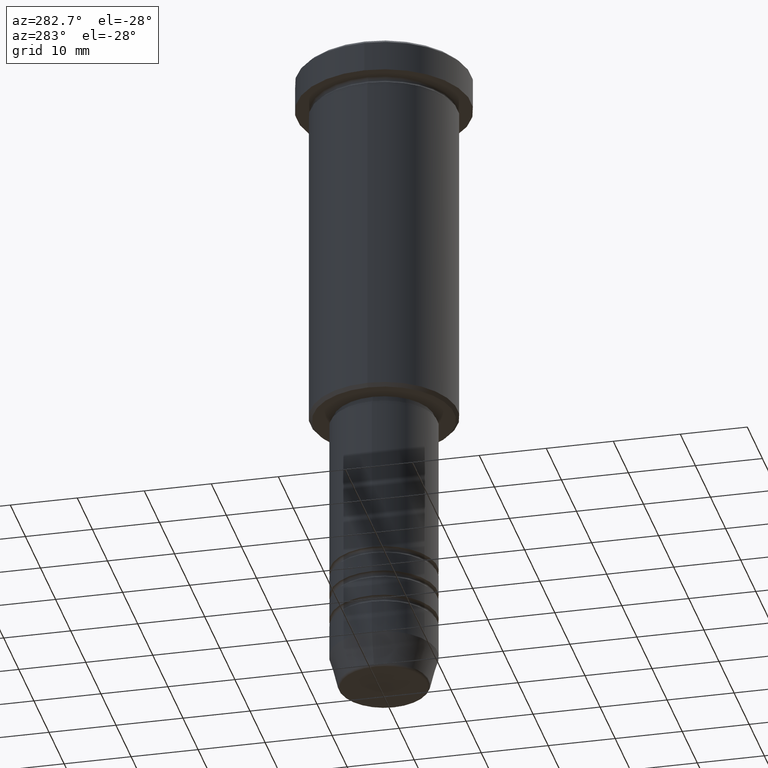
[diagram: clean part render]
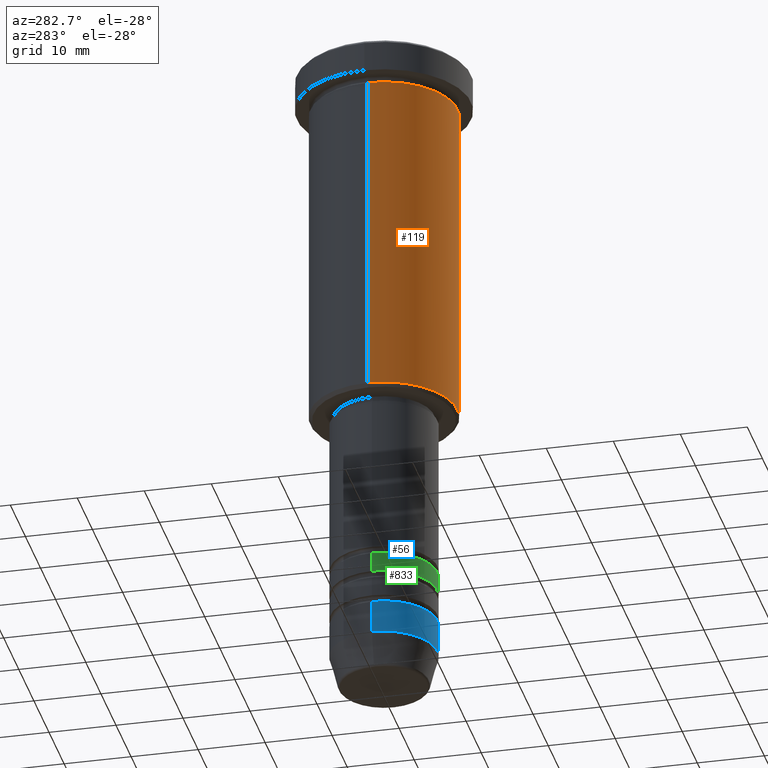
[diagram: same view with three faces highlighted in distinct colors, each labeled with its STEP entity id]
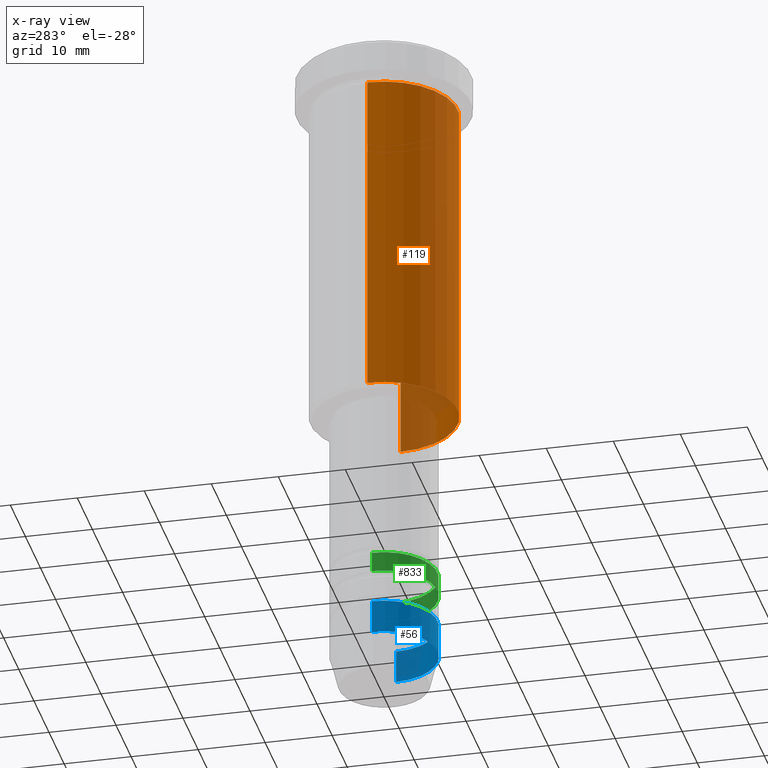
[diagram: x-ray of the same camera — body ghosted, the three highlighted faces saturated]
A machine part, auxiliary view with three faces highlighted in distinct colors.
The next image is the same camera in x-ray (body ghosted, the three faces saturated) — at least one of them is partly hidden behind the body in this view.
Their STEP definitions:

[orange] entity #119 — the highlighted cylindrical surface (partial cylindrical patch) has radius 11 mm, axis along (-0, -0, 1).
#22 = CARTESIAN_POINT ( 'NONE',  ( -11.00000000000000000, 1.347111479062088405E-15, -5.999999999999999112 ) ) ;
#49 = DIRECTION ( 'NONE',  ( -0.000000000000000000, -0.000000000000000000, 1.000000000000000000 ) ) ;
#52 = VERTEX_POINT ( 'NONE', #286 ) ;
#70 = ORIENTED_EDGE ( 'NONE', *, *, #1128, .T. ) ;
#119 = ADVANCED_FACE ( 'NONE', ( #501 ), #863, .T. ) ;
#128 = EDGE_CURVE ( 'NONE', #476, #162, #565, .T. ) ;
#162 = VERTEX_POINT ( 'NONE', #571 ) ;
#219 = DIRECTION ( 'NONE',  ( -0.000000000000000000, -0.000000000000000000, 1.000000000000000000 ) ) ;
#225 = AXIS2_PLACEMENT_3D ( 'NONE', #858, #219, #489 ) ;
#227 = DIRECTION ( 'NONE',  ( 1.000000000000000000, 0.000000000000000000, 0.000000000000000000 ) ) ;
#231 = LINE ( 'NONE', #684, #385 ) ;
#265 = ORIENTED_EDGE ( 'NONE', *, *, #622, .T. ) ;
#286 = CARTESIAN_POINT ( 'NONE',  ( 11.00000000000000000, 0.000000000000000000, -55.50000000000000000 ) ) ;
#315 = AXIS2_PLACEMENT_3D ( 'NONE', #752, #49, #227 ) ;
#357 = LINE ( 'NONE', #1072, #360 ) ;
#360 = VECTOR ( 'NONE', #532, 1000.000000000000000 ) ;
#385 = VECTOR ( 'NONE', #406, 1000.000000000000000 ) ;
#406 = DIRECTION ( 'NONE',  ( -0.000000000000000000, -0.000000000000000000, 1.000000000000000000 ) ) ;
#476 = VERTEX_POINT ( 'NONE', #22 ) ;
#489 = DIRECTION ( 'NONE',  ( 1.000000000000000000, 0.000000000000000000, 0.000000000000000000 ) ) ;
#501 = FACE_OUTER_BOUND ( 'NONE', #502, .T. ) ;
#502 = EDGE_LOOP ( 'NONE', ( #778, #265, #70, #1055 ) ) ;
#523 = CARTESIAN_POINT ( 'NONE',  ( 0.000000000000000000, 0.000000000000000000, -55.50000000000000000 ) ) ;
#527 = DIRECTION ( 'NONE',  ( -0.000000000000000000, -0.000000000000000000, 1.000000000000000000 ) ) ;
#532 = DIRECTION ( 'NONE',  ( -0.000000000000000000, -0.000000000000000000, 1.000000000000000000 ) ) ;
#565 = CIRCLE ( 'NONE', #225, 11.00000000000000000 ) ;
#571 = CARTESIAN_POINT ( 'NONE',  ( 11.00000000000000000, 0.000000000000000000, -5.999999999999999112 ) ) ;
#581 = VERTEX_POINT ( 'NONE', #583 ) ;
#583 = CARTESIAN_POINT ( 'NONE',  ( -11.00000000000000000, 1.347111479062088405E-15, -55.50000000000000000 ) ) ;
#622 = EDGE_CURVE ( 'NONE', #581, #52, #1139, .T. ) ;
#684 = CARTESIAN_POINT ( 'NONE',  ( 11.00000000000000000, 0.000000000000000000, 0.000000000000000000 ) ) ;
#752 = CARTESIAN_POINT ( 'NONE',  ( 0.000000000000000000, 0.000000000000000000, 0.000000000000000000 ) ) ;
#778 = ORIENTED_EDGE ( 'NONE', *, *, #855, .F. ) ;
#798 = DIRECTION ( 'NONE',  ( -1.000000000000000000, 0.000000000000000000, 0.000000000000000000 ) ) ;
#855 = EDGE_CURVE ( 'NONE', #581, #476, #357, .T. ) ;
#858 = CARTESIAN_POINT ( 'NONE',  ( 0.000000000000000000, 0.000000000000000000, -5.999999999999999112 ) ) ;
#863 = CYLINDRICAL_SURFACE ( 'NONE', #315, 11.00000000000000000 ) ;
#1055 = ORIENTED_EDGE ( 'NONE', *, *, #128, .F. ) ;
#1072 = CARTESIAN_POINT ( 'NONE',  ( -11.00000000000000000, 1.347111479062088405E-15, 0.000000000000000000 ) ) ;
#1074 = AXIS2_PLACEMENT_3D ( 'NONE', #523, #527, #798 ) ;
#1128 = EDGE_CURVE ( 'NONE', #52, #162, #231, .T. ) ;
#1139 = CIRCLE ( 'NONE', #1074, 11.00000000000000000 ) ;

[blue] entity #56 — the highlighted cylindrical surface (partial cylindrical patch) has radius 8 mm, axis along (-0, -0, 1).
#56 = ADVANCED_FACE ( 'NONE', ( #480 ), #678, .T. ) ;
#106 = VERTEX_POINT ( 'NONE', #133 ) ;
#133 = CARTESIAN_POINT ( 'NONE',  ( -8.000000000000000000, 9.797174393178825657E-16, -95.00000000000000000 ) ) ;
#137 = LINE ( 'NONE', #398, #966 ) ;
#147 = VECTOR ( 'NONE', #1012, 1000.000000000000000 ) ;
#159 = EDGE_CURVE ( 'NONE', #250, #321, #137, .T. ) ;
#202 = CARTESIAN_POINT ( 'NONE',  ( 8.000000000000000000, 0.000000000000000000, -90.00000000000000000 ) ) ;
#233 = CARTESIAN_POINT ( 'NONE',  ( -8.000000000000000000, 9.797174393178825657E-16, -90.00000000000000000 ) ) ;
#250 = VERTEX_POINT ( 'NONE', #975 ) ;
#274 = DIRECTION ( 'NONE',  ( 1.000000000000000000, 0.000000000000000000, 0.000000000000000000 ) ) ;
#321 = VERTEX_POINT ( 'NONE', #202 ) ;
#339 = EDGE_CURVE ( 'NONE', #713, #321, #687, .T. ) ;
#383 = LINE ( 'NONE', #1117, #147 ) ;
#398 = CARTESIAN_POINT ( 'NONE',  ( 8.000000000000000000, 0.000000000000000000, 0.000000000000000000 ) ) ;
#427 = EDGE_LOOP ( 'NONE', ( #947, #492, #904, #969 ) ) ;
#480 = FACE_OUTER_BOUND ( 'NONE', #427, .T. ) ;
#492 = ORIENTED_EDGE ( 'NONE', *, *, #902, .T. ) ;
#551 = AXIS2_PLACEMENT_3D ( 'NONE', #871, #931, #576 ) ;
#576 = DIRECTION ( 'NONE',  ( 1.000000000000000000, 0.000000000000000000, 0.000000000000000000 ) ) ;
#678 = CYLINDRICAL_SURFACE ( 'NONE', #551, 8.000000000000000000 ) ;
#687 = CIRCLE ( 'NONE', #980, 8.000000000000000000 ) ;
#713 = VERTEX_POINT ( 'NONE', #233 ) ;
#728 = DIRECTION ( 'NONE',  ( -0.000000000000000000, -0.000000000000000000, 1.000000000000000000 ) ) ;
#753 = AXIS2_PLACEMENT_3D ( 'NONE', #1001, #1183, #982 ) ;
#871 = CARTESIAN_POINT ( 'NONE',  ( 0.000000000000000000, 0.000000000000000000, 0.000000000000000000 ) ) ;
#902 = EDGE_CURVE ( 'NONE', #106, #250, #958, .T. ) ;
#904 = ORIENTED_EDGE ( 'NONE', *, *, #159, .T. ) ;
#931 = DIRECTION ( 'NONE',  ( -0.000000000000000000, -0.000000000000000000, 1.000000000000000000 ) ) ;
#947 = ORIENTED_EDGE ( 'NONE', *, *, #1163, .F. ) ;
#958 = CIRCLE ( 'NONE', #753, 8.000000000000000000 ) ;
#966 = VECTOR ( 'NONE', #1123, 1000.000000000000000 ) ;
#969 = ORIENTED_EDGE ( 'NONE', *, *, #339, .F. ) ;
#975 = CARTESIAN_POINT ( 'NONE',  ( 8.000000000000000000, 0.000000000000000000, -95.00000000000000000 ) ) ;
#980 = AXIS2_PLACEMENT_3D ( 'NONE', #997, #728, #274 ) ;
#982 = DIRECTION ( 'NONE',  ( 1.000000000000000000, 0.000000000000000000, 0.000000000000000000 ) ) ;
#997 = CARTESIAN_POINT ( 'NONE',  ( 0.000000000000000000, 0.000000000000000000, -90.00000000000000000 ) ) ;
#1001 = CARTESIAN_POINT ( 'NONE',  ( 0.000000000000000000, 0.000000000000000000, -95.00000000000000000 ) ) ;
#1012 = DIRECTION ( 'NONE',  ( -0.000000000000000000, -0.000000000000000000, 1.000000000000000000 ) ) ;
#1117 = CARTESIAN_POINT ( 'NONE',  ( -8.000000000000000000, 9.797174393178825657E-16, 0.000000000000000000 ) ) ;
#1123 = DIRECTION ( 'NONE',  ( -0.000000000000000000, -0.000000000000000000, 1.000000000000000000 ) ) ;
#1163 = EDGE_CURVE ( 'NONE', #106, #713, #383, .T. ) ;
#1183 = DIRECTION ( 'NONE',  ( -0.000000000000000000, -0.000000000000000000, 1.000000000000000000 ) ) ;

[green] entity #833 — the highlighted cylindrical surface (partial cylindrical patch) has radius 8 mm, axis along (-0, -0, 1).
#13 = CARTESIAN_POINT ( 'NONE',  ( 0.000000000000000000, 0.000000000000000000, 0.000000000000000000 ) ) ;
#58 = EDGE_LOOP ( 'NONE', ( #1071, #670, #187, #1149 ) ) ;
#89 = AXIS2_PLACEMENT_3D ( 'NONE', #142, #604, #163 ) ;
#103 = VERTEX_POINT ( 'NONE', #957 ) ;
#142 = CARTESIAN_POINT ( 'NONE',  ( 0.000000000000000000, 0.000000000000000000, -84.99999999999998579 ) ) ;
#154 = EDGE_CURVE ( 'NONE', #840, #847, #1047, .T. ) ;
#160 = EDGE_CURVE ( 'NONE', #444, #103, #584, .T. ) ;
#163 = DIRECTION ( 'NONE',  ( 1.000000000000000000, 0.000000000000000000, 0.000000000000000000 ) ) ;
#187 = ORIENTED_EDGE ( 'NONE', *, *, #160, .T. ) ;
#190 = VECTOR ( 'NONE', #1116, 1000.000000000000000 ) ;
#234 = CARTESIAN_POINT ( 'NONE',  ( -8.000000000000001776, 9.797174393178827630E-16, 0.000000000000000000 ) ) ;
#316 = CARTESIAN_POINT ( 'NONE',  ( 0.000000000000000000, 0.000000000000000000, -81.99999999999998579 ) ) ;
#371 = CARTESIAN_POINT ( 'NONE',  ( -8.000000000000000000, 9.797174393178827630E-16, -81.99999999999998579 ) ) ;
#395 = CARTESIAN_POINT ( 'NONE',  ( 8.000000000000003553, 0.000000000000000000, -84.99999999999998579 ) ) ;
#436 = EDGE_CURVE ( 'NONE', #847, #103, #661, .T. ) ;
#444 = VERTEX_POINT ( 'NONE', #395 ) ;
#494 = DIRECTION ( 'NONE',  ( 1.000000000000000000, 0.000000000000000000, 0.000000000000000000 ) ) ;
#584 = LINE ( 'NONE', #663, #740 ) ;
#589 = DIRECTION ( 'NONE',  ( -0.000000000000000000, -0.000000000000000000, 1.000000000000000000 ) ) ;
#595 = EDGE_CURVE ( 'NONE', #840, #444, #870, .T. ) ;
#604 = DIRECTION ( 'NONE',  ( -0.000000000000000000, -0.000000000000000000, 1.000000000000000000 ) ) ;
#631 = CYLINDRICAL_SURFACE ( 'NONE', #881, 8.000000000000001776 ) ;
#661 = CIRCLE ( 'NONE', #1118, 8.000000000000000000 ) ;
#663 = CARTESIAN_POINT ( 'NONE',  ( 8.000000000000001776, 0.000000000000000000, 0.000000000000000000 ) ) ;
#670 = ORIENTED_EDGE ( 'NONE', *, *, #595, .T. ) ;
#740 = VECTOR ( 'NONE', #589, 1000.000000000000000 ) ;
#822 = DIRECTION ( 'NONE',  ( 1.000000000000000000, 0.000000000000000000, 0.000000000000000000 ) ) ;
#833 = ADVANCED_FACE ( 'NONE', ( #989 ), #631, .T. ) ;
#840 = VERTEX_POINT ( 'NONE', #916 ) ;
#847 = VERTEX_POINT ( 'NONE', #371 ) ;
#870 = CIRCLE ( 'NONE', #89, 8.000000000000003553 ) ;
#881 = AXIS2_PLACEMENT_3D ( 'NONE', #13, #895, #822 ) ;
#895 = DIRECTION ( 'NONE',  ( -0.000000000000000000, -0.000000000000000000, 1.000000000000000000 ) ) ;
#916 = CARTESIAN_POINT ( 'NONE',  ( -8.000000000000003553, 9.797174393178829602E-16, -84.99999999999998579 ) ) ;
#950 = DIRECTION ( 'NONE',  ( -0.000000000000000000, -0.000000000000000000, 1.000000000000000000 ) ) ;
#957 = CARTESIAN_POINT ( 'NONE',  ( 8.000000000000000000, 0.000000000000000000, -81.99999999999998579 ) ) ;
#989 = FACE_OUTER_BOUND ( 'NONE', #58, .T. ) ;
#1047 = LINE ( 'NONE', #234, #190 ) ;
#1071 = ORIENTED_EDGE ( 'NONE', *, *, #154, .F. ) ;
#1116 = DIRECTION ( 'NONE',  ( -0.000000000000000000, -0.000000000000000000, 1.000000000000000000 ) ) ;
#1118 = AXIS2_PLACEMENT_3D ( 'NONE', #316, #950, #494 ) ;
#1149 = ORIENTED_EDGE ( 'NONE', *, *, #436, .F. ) ;